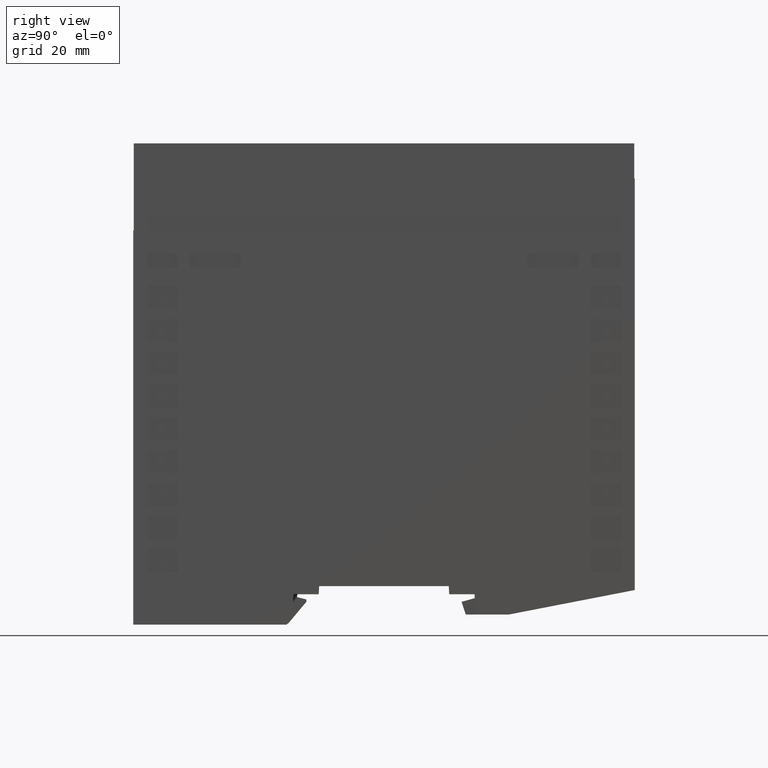
[diagram: clean part render]
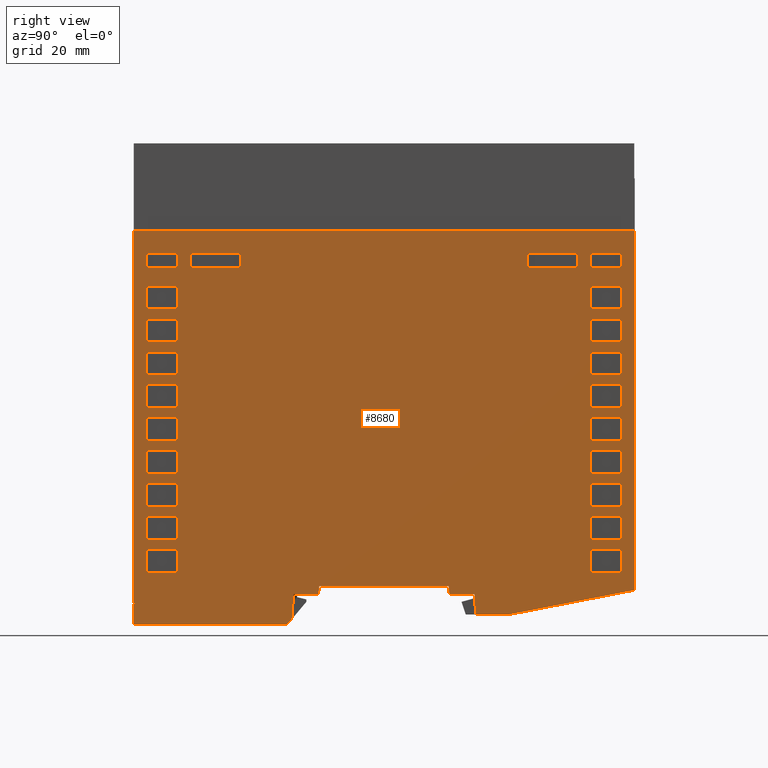
[diagram: same view with one face highlighted and labeled with its STEP entity id]
A machine part, right view. The second image highlights one B-rep face of the part: STEP entity #8680.
In plain terms, the highlighted planar face has unit normal (1, 0, 0).
Its self-contained STEP definition (entity closure, byte-faithful):
#10=CARTESIAN_POINT('',(-16.,36.7,0.));
#20=DIRECTION('',(-1.,0.,0.));
#30=DIRECTION('',(0.,0.,1.));
#40=AXIS2_PLACEMENT_3D('',#10,#20,#30);
#50=PLANE('',#40);
#60=CARTESIAN_POINT('',(-16.,60.84057139224,0.));
#70=DIRECTION('',(0.,0.,-1.));
#80=VECTOR('',#70,1.);
#90=LINE('',#60,#80);
#100=CARTESIAN_POINT('',(-16.,60.84057139224,46.99057139224));
#110=VERTEX_POINT('',#100);
#120=CARTESIAN_POINT('',(-16.,60.84057139224,40.80942860776));
#130=VERTEX_POINT('',#120);
#140=EDGE_CURVE('',#110,#130,#90,.T.);
#150=ORIENTED_EDGE('',*,*,#140,.F.);
#160=CARTESIAN_POINT('',(-16.,71.8,40.80942860776));
#170=DIRECTION('',(0.,-1.,0.));
#180=VECTOR('',#170,1.);
#190=LINE('',#160,#180);
#200=CARTESIAN_POINT('',(-16.,56.35942860776,40.80942860776));
#210=VERTEX_POINT('',#200);
#220=EDGE_CURVE('',#130,#210,#190,.T.);
#230=ORIENTED_EDGE('',*,*,#220,.F.);
#240=CARTESIAN_POINT('',(-16.,56.35942860776,0.));
#250=DIRECTION('',(0.,0.,1.));
#260=VECTOR('',#250,1.);
#270=LINE('',#240,#260);
#280=CARTESIAN_POINT('',(-16.,56.35942860776,46.99057139224));
#290=VERTEX_POINT('',#280);
#300=EDGE_CURVE('',#210,#290,#270,.T.);
#310=ORIENTED_EDGE('',*,*,#300,.F.);
#320=CARTESIAN_POINT('',(-16.,71.8,46.99057139224));
#330=DIRECTION('',(0.,1.,0.));
#340=VECTOR('',#330,1.);
#350=LINE('',#320,#340);
#360=EDGE_CURVE('',#290,#110,#350,.T.);
#370=ORIENTED_EDGE('',*,*,#360,.F.);
#380=EDGE_LOOP('',(#370,#310,#230,#150));
#390=FACE_BOUND('',#380,.T.);
#400=CARTESIAN_POINT('',(-16.,8.84057139223999,0.));
#410=DIRECTION('',(0.,0.,-1.));
#420=VECTOR('',#410,1.);
#430=LINE('',#400,#420);
#440=CARTESIAN_POINT('',(-16.,8.84057139223999,46.99057139224));
#450=VERTEX_POINT('',#440);
#460=CARTESIAN_POINT('',(-16.,8.84057139223999,40.80942860776));
#470=VERTEX_POINT('',#460);
#480=EDGE_CURVE('',#450,#470,#430,.T.);
#490=ORIENTED_EDGE('',*,*,#480,.F.);
#500=CARTESIAN_POINT('',(-16.,71.8,40.80942860776));
#510=DIRECTION('',(0.,-1.,0.));
#520=VECTOR('',#510,1.);
#530=LINE('',#500,#520);
#540=CARTESIAN_POINT('',(-16.,4.35942860775999,40.80942860776));
#550=VERTEX_POINT('',#540);
#560=EDGE_CURVE('',#470,#550,#530,.T.);
#570=ORIENTED_EDGE('',*,*,#560,.F.);
#580=CARTESIAN_POINT('',(-16.,4.35942860775999,0.));
#590=DIRECTION('',(0.,0.,1.));
#600=VECTOR('',#590,1.);
#610=LINE('',#580,#600);
#620=CARTESIAN_POINT('',(-16.,4.35942860775999,46.99057139224));
#630=VERTEX_POINT('',#620);
#640=EDGE_CURVE('',#550,#630,#610,.T.);
#650=ORIENTED_EDGE('',*,*,#640,.F.);
#660=CARTESIAN_POINT('',(-16.,71.8,46.99057139224));
#670=DIRECTION('',(0.,1.,0.));
#680=VECTOR('',#670,1.);
#690=LINE('',#660,#680);
#700=EDGE_CURVE('',#630,#450,#690,.T.);
#710=ORIENTED_EDGE('',*,*,#700,.F.);
#720=EDGE_LOOP('',(#710,#650,#570,#490));
#730=FACE_BOUND('',#720,.T.);
#740=CARTESIAN_POINT('',(-16.,23.85942860776,0.));
#750=DIRECTION('',(0.,0.,1.));
#760=VECTOR('',#750,1.);
#770=LINE('',#740,#760);
#780=CARTESIAN_POINT('',(-16.,23.85942860776,40.80942860776));
#790=VERTEX_POINT('',#780);
#800=CARTESIAN_POINT('',(-16.,23.85942860776,46.99057139224));
#810=VERTEX_POINT('',#800);
#820=EDGE_CURVE('',#790,#810,#770,.T.);
#830=ORIENTED_EDGE('',*,*,#820,.F.);
#840=CARTESIAN_POINT('',(-16.,71.8,46.99057139224));
#850=DIRECTION('',(0.,1.,0.));
#860=VECTOR('',#850,1.);
#870=LINE('',#840,#860);
#880=CARTESIAN_POINT('',(-16.,28.34057139224,46.99057139224));
#890=VERTEX_POINT('',#880);
#900=EDGE_CURVE('',#810,#890,#870,.T.);
#910=ORIENTED_EDGE('',*,*,#900,.F.);
#920=CARTESIAN_POINT('',(-16.,28.34057139224,0.));
#930=DIRECTION('',(0.,0.,-1.));
#940=VECTOR('',#930,1.);
#950=LINE('',#920,#940);
#960=CARTESIAN_POINT('',(-16.,28.34057139224,40.80942860776));
#970=VERTEX_POINT('',#960);
#980=EDGE_CURVE('',#890,#970,#950,.T.);
#990=ORIENTED_EDGE('',*,*,#980,.F.);
#1000=CARTESIAN_POINT('',(-16.,71.8,40.80942860776));
#1010=DIRECTION('',(0.,-1.,0.));
#1020=VECTOR('',#1010,1.);
#1030=LINE('',#1000,#1020);
#1040=EDGE_CURVE('',#970,#790,#1030,.T.);
#1050=ORIENTED_EDGE('',*,*,#1040,.F.);
#1060=EDGE_LOOP('',(#1050,#990,#910,#830));
#1070=FACE_BOUND('',#1060,.T.);
#1080=CARTESIAN_POINT('',(-16.,47.84057139224,0.));
#1090=DIRECTION('',(0.,0.,-1.));
#1100=VECTOR('',#1090,1.);
#1110=LINE('',#1080,#1100);
#1120=CARTESIAN_POINT('',(-16.,47.84057139224,46.99057139224));
#1130=VERTEX_POINT('',#1120);
#1140=CARTESIAN_POINT('',(-16.,47.84057139224,40.80942860776));
#1150=VERTEX_POINT('',#1140);
#1160=EDGE_CURVE('',#1130,#1150,#1110,.T.);
#1170=ORIENTED_EDGE('',*,*,#1160,.F.);
#1180=CARTESIAN_POINT('',(-16.,71.8,40.80942860776));
#1190=DIRECTION('',(0.,-1.,0.));
#1200=VECTOR('',#1190,1.);
#1210=LINE('',#1180,#1200);
#1220=CARTESIAN_POINT('',(-16.,43.35942860776,40.80942860776));
#1230=VERTEX_POINT('',#1220);
#1240=EDGE_CURVE('',#1150,#1230,#1210,.T.);
#1250=ORIENTED_EDGE('',*,*,#1240,.F.);
#1260=CARTESIAN_POINT('',(-16.,43.35942860776,0.));
#1270=DIRECTION('',(0.,0.,1.));
#1280=VECTOR('',#1270,1.);
#1290=LINE('',#1260,#1280);
#1300=CARTESIAN_POINT('',(-16.,43.35942860776,46.99057139224));
#1310=VERTEX_POINT('',#1300);
#1320=EDGE_CURVE('',#1230,#1310,#1290,.T.);
#1330=ORIENTED_EDGE('',*,*,#1320,.F.);
#1340=CARTESIAN_POINT('',(-16.,71.8,46.99057139224));
#1350=DIRECTION('',(0.,1.,0.));
#1360=VECTOR('',#1350,1.);
#1370=LINE('',#1340,#1360);
#1380=EDGE_CURVE('',#1310,#1130,#1370,.T.);
#1390=ORIENTED_EDGE('',*,*,#1380,.F.);
#1400=EDGE_LOOP('',(#1390,#1330,#1250,#1170));
#1410=FACE_BOUND('',#1400,.T.);
#1420=CARTESIAN_POINT('',(-16.,64.409428607763,0.));
#1430=DIRECTION('',(0.,0.,1.));
#1440=VECTOR('',#1430,1.);
#1450=LINE('',#1420,#1440);
#1460=CARTESIAN_POINT('',(-16.,64.409428607763,40.80942860776));
#1470=VERTEX_POINT('',#1460);
#1480=CARTESIAN_POINT('',(-16.,64.409428607763,46.99057139224));
#1490=VERTEX_POINT('',#1480);
#1500=EDGE_CURVE('',#1470,#1490,#1450,.T.);
#1510=ORIENTED_EDGE('',*,*,#1500,.F.);
#1520=CARTESIAN_POINT('',(-16.,71.8,46.99057139224));
#1530=DIRECTION('',(0.,1.,0.));
#1540=VECTOR('',#1530,1.);
#1550=LINE('',#1520,#1540);
#1560=CARTESIAN_POINT('',(-16.,67.290571392237,46.99057139224));
#1570=VERTEX_POINT('',#1560);
#1580=EDGE_CURVE('',#1490,#1570,#1550,.T.);
#1590=ORIENTED_EDGE('',*,*,#1580,.F.);
#1600=CARTESIAN_POINT('',(-16.,67.290571392237,0.));
#1610=DIRECTION('',(0.,0.,-1.));
#1620=VECTOR('',#1610,1.);
#1630=LINE('',#1600,#1620);
#1640=CARTESIAN_POINT('',(-16.,67.290571392237,40.80942860776));
#1650=VERTEX_POINT('',#1640);
#1660=EDGE_CURVE('',#1570,#1650,#1630,.T.);
#1670=ORIENTED_EDGE('',*,*,#1660,.F.);
#1680=CARTESIAN_POINT('',(-16.,71.8,40.80942860776));
#1690=DIRECTION('',(0.,-1.,0.));
#1700=VECTOR('',#1690,1.);
#1710=LINE('',#1680,#1700);
#1720=EDGE_CURVE('',#1650,#1470,#1710,.T.);
#1730=ORIENTED_EDGE('',*,*,#1720,.F.);
#1740=EDGE_LOOP('',(#1730,#1670,#1590,#1510));
#1750=FACE_BOUND('',#1740,.T.);
#1760=CARTESIAN_POINT('',(-16.,71.8,46.99057139224));
#1770=DIRECTION('',(0.,1.,0.));
#1780=VECTOR('',#1770,1.);
#1790=LINE('',#1760,#1780);
#1800=CARTESIAN_POINT('',(-16.,17.35942860776,46.99057139224));
#1810=VERTEX_POINT('',#1800);
#1820=CARTESIAN_POINT('',(-16.,21.84057139224,46.99057139224));
#1830=VERTEX_POINT('',#1820);
#1840=EDGE_CURVE('',#1810,#1830,#1790,.T.);
#1850=ORIENTED_EDGE('',*,*,#1840,.F.);
#1860=CARTESIAN_POINT('',(-16.,21.84057139224,0.));
#1870=DIRECTION('',(0.,0.,-1.));
#1880=VECTOR('',#1870,1.);
#1890=LINE('',#1860,#1880);
#1900=CARTESIAN_POINT('',(-16.,21.84057139224,40.80942860776));
#1910=VERTEX_POINT('',#1900);
#1920=EDGE_CURVE('',#1830,#1910,#1890,.T.);
#1930=ORIENTED_EDGE('',*,*,#1920,.F.);
#1940=CARTESIAN_POINT('',(-16.,71.8,40.80942860776));
#1950=DIRECTION('',(0.,-1.,0.));
#1960=VECTOR('',#1950,1.);
#1970=LINE('',#1940,#1960);
#1980=CARTESIAN_POINT('',(-16.,17.35942860776,40.80942860776));
#1990=VERTEX_POINT('',#1980);
#2000=EDGE_CURVE('',#1910,#1990,#1970,.T.);
#2010=ORIENTED_EDGE('',*,*,#2000,.F.);
#2020=CARTESIAN_POINT('',(-16.,17.35942860776,0.));
#2030=DIRECTION('',(0.,0.,1.));
#2040=VECTOR('',#2030,1.);
#2050=LINE('',#2020,#2040);
#2060=EDGE_CURVE('',#1990,#1810,#2050,.T.);
#2070=ORIENTED_EDGE('',*,*,#2060,.F.);
#2080=EDGE_LOOP('',(#2070,#2010,#1930,#1850));
#2090=FACE_BOUND('',#2080,.T.);
#2100=CARTESIAN_POINT('',(-16.,36.85942860776,0.));
#2110=DIRECTION('',(0.,0.,1.));
#2120=VECTOR('',#2110,1.);
#2130=LINE('',#2100,#2120);
#2140=CARTESIAN_POINT('',(-16.,36.85942860776,40.80942860776));
#2150=VERTEX_POINT('',#2140);
#2160=CARTESIAN_POINT('',(-16.,36.85942860776,46.99057139224));
#2170=VERTEX_POINT('',#2160);
#2180=EDGE_CURVE('',#2150,#2170,#2130,.T.);
#2190=ORIENTED_EDGE('',*,*,#2180,.F.);
#2200=CARTESIAN_POINT('',(-16.,71.8,46.99057139224));
#2210=DIRECTION('',(0.,1.,0.));
#2220=VECTOR('',#2210,1.);
#2230=LINE('',#2200,#2220);
#2240=CARTESIAN_POINT('',(-16.,41.34057139224,46.99057139224));
#2250=VERTEX_POINT('',#2240);
#2260=EDGE_CURVE('',#2170,#2250,#2230,.T.);
#2270=ORIENTED_EDGE('',*,*,#2260,.F.);
#2280=CARTESIAN_POINT('',(-16.,41.34057139224,0.));
#2290=DIRECTION('',(0.,0.,-1.));
#2300=VECTOR('',#2290,1.);
#2310=LINE('',#2280,#2300);
#2320=CARTESIAN_POINT('',(-16.,41.34057139224,40.80942860776));
#2330=VERTEX_POINT('',#2320);
#2340=EDGE_CURVE('',#2250,#2330,#2310,.T.);
#2350=ORIENTED_EDGE('',*,*,#2340,.F.);
#2360=CARTESIAN_POINT('',(-16.,71.8,40.80942860776));
#2370=DIRECTION('',(0.,-1.,0.));
#2380=VECTOR('',#2370,1.);
#2390=LINE('',#2360,#2380);
#2400=EDGE_CURVE('',#2330,#2150,#2390,.T.);
#2410=ORIENTED_EDGE('',*,*,#2400,.F.);
#2420=EDGE_LOOP('',(#2410,#2350,#2270,#2190));
#2430=FACE_BOUND('',#2420,.T.);
#2440=CARTESIAN_POINT('',(-16.,30.35942860776,0.));
#2450=DIRECTION('',(0.,0.,1.));
#2460=VECTOR('',#2450,1.);
#2470=LINE('',#2440,#2460);
#2480=CARTESIAN_POINT('',(-16.,30.35942860776,40.80942860776));
#2490=VERTEX_POINT('',#2480);
#2500=CARTESIAN_POINT('',(-16.,30.35942860776,46.99057139224));
#2510=VERTEX_POINT('',#2500);
#2520=EDGE_CURVE('',#2490,#2510,#2470,.T.);
#2530=ORIENTED_EDGE('',*,*,#2520,.F.);
#2540=CARTESIAN_POINT('',(-16.,71.8,46.99057139224));
#2550=DIRECTION('',(0.,1.,0.));
#2560=VECTOR('',#2550,1.);
#2570=LINE('',#2540,#2560);
#2580=CARTESIAN_POINT('',(-16.,34.84057139224,46.99057139224));
#2590=VERTEX_POINT('',#2580);
#2600=EDGE_CURVE('',#2510,#2590,#2570,.T.);
#2610=ORIENTED_EDGE('',*,*,#2600,.F.);
#2620=CARTESIAN_POINT('',(-16.,34.84057139224,0.));
#2630=DIRECTION('',(0.,0.,-1.));
#2640=VECTOR('',#2630,1.);
#2650=LINE('',#2620,#2640);
#2660=CARTESIAN_POINT('',(-16.,34.84057139224,40.80942860776));
#2670=VERTEX_POINT('',#2660);
#2680=EDGE_CURVE('',#2590,#2670,#2650,.T.);
#2690=ORIENTED_EDGE('',*,*,#2680,.F.);
#2700=CARTESIAN_POINT('',(-16.,71.8,40.80942860776));
#2710=DIRECTION('',(0.,-1.,0.));
#2720=VECTOR('',#2710,1.);
#2730=LINE('',#2700,#2720);
#2740=EDGE_CURVE('',#2670,#2490,#2730,.T.);
#2750=ORIENTED_EDGE('',*,*,#2740,.F.);
#2760=EDGE_LOOP('',(#2750,#2690,#2610,#2530));
#2770=FACE_BOUND('',#2760,.T.);
#2780=CARTESIAN_POINT('',(-16.,71.8,38.31221761491));
#2790=DIRECTION('',(0.,-1.,0.));
#2800=VECTOR('',#2790,1.);
#2810=LINE('',#2780,#2800);
#2820=CARTESIAN_POINT('',(-16.,67.312217614907,38.31221761491));
#2830=VERTEX_POINT('',#2820);
#2840=CARTESIAN_POINT('',(-16.,64.387782385093,38.31221761491));
#2850=VERTEX_POINT('',#2840);
#2860=EDGE_CURVE('',#2830,#2850,#2810,.T.);
#2870=ORIENTED_EDGE('',*,*,#2860,.T.);
#2880=CARTESIAN_POINT('',(-16.,67.312217614907,0.));
#2890=DIRECTION('',(0.,0.,1.));
#2900=VECTOR('',#2890,1.);
#2910=LINE('',#2880,#2900);
#2920=CARTESIAN_POINT('',(-16.,67.312217614907,28.28778238509));
#2930=VERTEX_POINT('',#2920);
#2940=EDGE_CURVE('',#2930,#2830,#2910,.T.);
#2950=ORIENTED_EDGE('',*,*,#2940,.T.);
#2960=CARTESIAN_POINT('',(-16.,71.8,28.28778238509));
#2970=DIRECTION('',(0.,1.,0.));
#2980=VECTOR('',#2970,1.);
#2990=LINE('',#2960,#2980);
#3000=CARTESIAN_POINT('',(-16.,64.387782385093,28.28778238509));
#3010=VERTEX_POINT('',#3000);
#3020=EDGE_CURVE('',#3010,#2930,#2990,.T.);
#3030=ORIENTED_EDGE('',*,*,#3020,.T.);
#3040=CARTESIAN_POINT('',(-16.,64.387782385093,0.));
#3050=DIRECTION('',(0.,0.,-1.));
#3060=VECTOR('',#3050,1.);
#3070=LINE('',#3040,#3060);
#3080=EDGE_CURVE('',#2850,#3010,#3070,.T.);
#3090=ORIENTED_EDGE('',*,*,#3080,.T.);
#3100=EDGE_LOOP('',(#3090,#3030,#2950,#2870));
#3110=FACE_BOUND('',#3100,.T.);
#3120=CARTESIAN_POINT('',(-16.,49.85942860776,0.));
#3130=DIRECTION('',(0.,0.,1.));
#3140=VECTOR('',#3130,1.);
#3150=LINE('',#3120,#3140);
#3160=CARTESIAN_POINT('',(-16.,49.85942860776,40.80942860776));
#3170=VERTEX_POINT('',#3160);
#3180=CARTESIAN_POINT('',(-16.,49.85942860776,46.99057139224));
#3190=VERTEX_POINT('',#3180);
#3200=EDGE_CURVE('',#3170,#3190,#3150,.T.);
#3210=ORIENTED_EDGE('',*,*,#3200,.F.);
#3220=CARTESIAN_POINT('',(-16.,71.8,46.99057139224));
#3230=DIRECTION('',(0.,1.,0.));
#3240=VECTOR('',#3230,1.);
#3250=LINE('',#3220,#3240);
#3260=CARTESIAN_POINT('',(-16.,54.34057139224,46.99057139224));
#3270=VERTEX_POINT('',#3260);
#3280=EDGE_CURVE('',#3190,#3270,#3250,.T.);
#3290=ORIENTED_EDGE('',*,*,#3280,.F.);
#3300=CARTESIAN_POINT('',(-16.,54.34057139224,0.));
#3310=DIRECTION('',(0.,0.,-1.));
#3320=VECTOR('',#3310,1.);
#3330=LINE('',#3300,#3320);
#3340=CARTESIAN_POINT('',(-16.,54.34057139224,40.80942860776));
#3350=VERTEX_POINT('',#3340);
#3360=EDGE_CURVE('',#3270,#3350,#3330,.T.);
#3370=ORIENTED_EDGE('',*,*,#3360,.F.);
#3380=CARTESIAN_POINT('',(-16.,71.8,40.80942860776));
#3390=DIRECTION('',(0.,-1.,0.));
#3400=VECTOR('',#3390,1.);
#3410=LINE('',#3380,#3400);
#3420=EDGE_CURVE('',#3350,#3170,#3410,.T.);
#3430=ORIENTED_EDGE('',*,*,#3420,.F.);
#3440=EDGE_LOOP('',(#3430,#3370,#3290,#3210));
#3450=FACE_BOUND('',#3440,.T.);
#3460=CARTESIAN_POINT('',(-16.,71.8,40.80942860776));
#3470=DIRECTION('',(0.,-1.,0.));
#3480=VECTOR('',#3470,1.);
#3490=LINE('',#3460,#3480);
#3500=CARTESIAN_POINT('',(-16.,15.35,40.80942860776));
#3510=VERTEX_POINT('',#3500);
#3520=CARTESIAN_POINT('',(-16.,10.85,40.80942860776));
#3530=VERTEX_POINT('',#3520);
#3540=EDGE_CURVE('',#3510,#3530,#3490,.T.);
#3550=ORIENTED_EDGE('',*,*,#3540,.F.);
#3560=CARTESIAN_POINT('',(-16.,10.85,0.));
#3570=DIRECTION('',(0.,0.,-1.));
#3580=VECTOR('',#3570,1.);
#3590=LINE('',#3560,#3580);
#3600=CARTESIAN_POINT('',(-16.,10.85,46.99057139224));
#3610=VERTEX_POINT('',#3600);
#3620=EDGE_CURVE('',#3610,#3530,#3590,.T.);
#3630=ORIENTED_EDGE('',*,*,#3620,.T.);
#3640=CARTESIAN_POINT('',(-16.,71.8,46.99057139224));
#3650=DIRECTION('',(0.,1.,0.));
#3660=VECTOR('',#3650,1.);
#3670=LINE('',#3640,#3660);
#3680=CARTESIAN_POINT('',(-16.,15.35,46.99057139224));
#3690=VERTEX_POINT('',#3680);
#3700=EDGE_CURVE('',#3610,#3690,#3670,.T.);
#3710=ORIENTED_EDGE('',*,*,#3700,.F.);
#3720=CARTESIAN_POINT('',(-16.,15.35,0.));
#3730=DIRECTION('',(0.,0.,1.));
#3740=VECTOR('',#3730,1.);
#3750=LINE('',#3720,#3740);
#3760=EDGE_CURVE('',#3510,#3690,#3750,.T.);
#3770=ORIENTED_EDGE('',*,*,#3760,.T.);
#3780=EDGE_LOOP('',(#3770,#3710,#3630,#3550));
#3790=FACE_BOUND('',#3780,.T.);
#3800=CARTESIAN_POINT('',(-16.,64.387782385093,0.));
#3810=DIRECTION('',(0.,0.,-1.));
#3820=VECTOR('',#3810,1.);
#3830=LINE('',#3800,#3820);
#3840=CARTESIAN_POINT('',(-16.,64.387782385093,-28.28778238509));
#3850=VERTEX_POINT('',#3840);
#3860=CARTESIAN_POINT('',(-16.,64.387782385093,-38.31221761491));
#3870=VERTEX_POINT('',#3860);
#3880=EDGE_CURVE('',#3850,#3870,#3830,.T.);
#3890=ORIENTED_EDGE('',*,*,#3880,.T.);
#3900=CARTESIAN_POINT('',(-16.,71.8,-28.28778238509));
#3910=DIRECTION('',(0.,-1.,0.));
#3920=VECTOR('',#3910,1.);
#3930=LINE('',#3900,#3920);
#3940=CARTESIAN_POINT('',(-16.,67.312217614907,-28.28778238509));
#3950=VERTEX_POINT('',#3940);
#3960=EDGE_CURVE('',#3950,#3850,#3930,.T.);
#3970=ORIENTED_EDGE('',*,*,#3960,.T.);
#3980=CARTESIAN_POINT('',(-16.,67.312217614907,0.));
#3990=DIRECTION('',(0.,0.,1.));
#4000=VECTOR('',#3990,1.);
#4010=LINE('',#3980,#4000);
#4020=CARTESIAN_POINT('',(-16.,67.312217614907,-38.31221761491));
#4030=VERTEX_POINT('',#4020);
#4040=EDGE_CURVE('',#4030,#3950,#4010,.T.);
#4050=ORIENTED_EDGE('',*,*,#4040,.T.);
#4060=CARTESIAN_POINT('',(-16.,71.8,-38.31221761491));
#4070=DIRECTION('',(0.,1.,0.));
#4080=VECTOR('',#4070,1.);
#4090=LINE('',#4060,#4080);
#4100=EDGE_CURVE('',#3870,#4030,#4090,.T.);
#4110=ORIENTED_EDGE('',*,*,#4100,.T.);
#4120=EDGE_LOOP('',(#4110,#4050,#3970,#3890));
#4130=FACE_BOUND('',#4120,.T.);
#4140=CARTESIAN_POINT('',(-16.,30.35942860776,0.));
#4150=DIRECTION('',(0.,0.,1.));
#4160=VECTOR('',#4150,1.);
#4170=LINE('',#4140,#4160);
#4180=CARTESIAN_POINT('',(-16.,30.35942860776,-46.99057139224));
#4190=VERTEX_POINT('',#4180);
#4200=CARTESIAN_POINT('',(-16.,30.35942860776,-40.80942860776));
#4210=VERTEX_POINT('',#4200);
#4220=EDGE_CURVE('',#4190,#4210,#4170,.T.);
#4230=ORIENTED_EDGE('',*,*,#4220,.F.);
#4240=CARTESIAN_POINT('',(-16.,71.8,-40.80942860776));
#4250=DIRECTION('',(0.,1.,0.));
#4260=VECTOR('',#4250,1.);
#4270=LINE('',#4240,#4260);
#4280=CARTESIAN_POINT('',(-16.,34.84057139224,-40.80942860776));
#4290=VERTEX_POINT('',#4280);
#4300=EDGE_CURVE('',#4210,#4290,#4270,.T.);
#4310=ORIENTED_EDGE('',*,*,#4300,.F.);
#4320=CARTESIAN_POINT('',(-16.,34.84057139224,0.));
#4330=DIRECTION('',(0.,0.,-1.));
#4340=VECTOR('',#4330,1.);
#4350=LINE('',#4320,#4340);
#4360=CARTESIAN_POINT('',(-16.,34.84057139224,-46.99057139224));
#4370=VERTEX_POINT('',#4360);
#4380=EDGE_CURVE('',#4290,#4370,#4350,.T.);
#4390=ORIENTED_EDGE('',*,*,#4380,.F.);
#4400=CARTESIAN_POINT('',(-16.,71.8,-46.99057139224));
#4410=DIRECTION('',(0.,-1.,0.));
#4420=VECTOR('',#4410,1.);
#4430=LINE('',#4400,#4420);
#4440=EDGE_CURVE('',#4370,#4190,#4430,.T.);
#4450=ORIENTED_EDGE('',*,*,#4440,.F.);
#4460=EDGE_LOOP('',(#4450,#4390,#4310,#4230));
#4470=FACE_BOUND('',#4460,.T.);
#4480=CARTESIAN_POINT('',(-16.,60.84057139224,0.));
#4490=DIRECTION('',(0.,0.,-1.));
#4500=VECTOR('',#4490,1.);
#4510=LINE('',#4480,#4500);
#4520=CARTESIAN_POINT('',(-16.,60.84057139224,-40.80942860776));
#4530=VERTEX_POINT('',#4520);
#4540=CARTESIAN_POINT('',(-16.,60.84057139224,-46.99057139224));
#4550=VERTEX_POINT('',#4540);
#4560=EDGE_CURVE('',#4530,#4550,#4510,.T.);
#4570=ORIENTED_EDGE('',*,*,#4560,.F.);
#4580=CARTESIAN_POINT('',(-16.,71.8,-46.99057139224));
#4590=DIRECTION('',(0.,-1.,0.));
#4600=VECTOR('',#4590,1.);
#4610=LINE('',#4580,#4600);
#4620=CARTESIAN_POINT('',(-16.,56.35942860776,-46.99057139224));
#4630=VERTEX_POINT('',#4620);
#4640=EDGE_CURVE('',#4550,#4630,#4610,.T.);
#4650=ORIENTED_EDGE('',*,*,#4640,.F.);
#4660=CARTESIAN_POINT('',(-16.,56.35942860776,0.));
#4670=DIRECTION('',(0.,0.,1.));
#4680=VECTOR('',#4670,1.);
#4690=LINE('',#4660,#4680);
#4700=CARTESIAN_POINT('',(-16.,56.35942860776,-40.80942860776));
#4710=VERTEX_POINT('',#4700);
#4720=EDGE_CURVE('',#4630,#4710,#4690,.T.);
#4730=ORIENTED_EDGE('',*,*,#4720,.F.);
#4740=CARTESIAN_POINT('',(-16.,71.8,-40.80942860776));
#4750=DIRECTION('',(0.,1.,0.));
#4760=VECTOR('',#4750,1.);
#4770=LINE('',#4740,#4760);
#4780=EDGE_CURVE('',#4710,#4530,#4770,.T.);
#4790=ORIENTED_EDGE('',*,*,#4780,.F.);
#4800=EDGE_LOOP('',(#4790,#4730,#4650,#4570));
#4810=FACE_BOUND('',#4800,.T.);
#4820=CARTESIAN_POINT('',(-16.,10.85,0.));
#4830=DIRECTION('',(0.,0.,-1.));
#4840=VECTOR('',#4830,1.);
#4850=LINE('',#4820,#4840);
#4860=CARTESIAN_POINT('',(-16.,10.85,-40.80942860776));
#4870=VERTEX_POINT('',#4860);
#4880=CARTESIAN_POINT('',(-16.,10.85,-46.99057139224));
#4890=VERTEX_POINT('',#4880);
#4900=EDGE_CURVE('',#4870,#4890,#4850,.T.);
#4910=ORIENTED_EDGE('',*,*,#4900,.T.);
#4920=CARTESIAN_POINT('',(-16.,71.8,-40.80942860776));
#4930=DIRECTION('',(0.,1.,0.));
#4940=VECTOR('',#4930,1.);
#4950=LINE('',#4920,#4940);
#4960=CARTESIAN_POINT('',(-16.,15.35,-40.80942860776));
#4970=VERTEX_POINT('',#4960);
#4980=EDGE_CURVE('',#4870,#4970,#4950,.T.);
#4990=ORIENTED_EDGE('',*,*,#4980,.F.);
#5000=CARTESIAN_POINT('',(-16.,15.35,0.));
#5010=DIRECTION('',(0.,0.,1.));
#5020=VECTOR('',#5010,1.);
#5030=LINE('',#5000,#5020);
#5040=CARTESIAN_POINT('',(-16.,15.35,-46.99057139224));
#5050=VERTEX_POINT('',#5040);
#5060=EDGE_CURVE('',#5050,#4970,#5030,.T.);
#5070=ORIENTED_EDGE('',*,*,#5060,.T.);
#5080=CARTESIAN_POINT('',(-16.,71.8,-46.99057139224));
#5090=DIRECTION('',(0.,-1.,0.));
#5100=VECTOR('',#5090,1.);
#5110=LINE('',#5080,#5100);
#5120=EDGE_CURVE('',#5050,#4890,#5110,.T.);
#5130=ORIENTED_EDGE('',*,*,#5120,.F.);
#5140=EDGE_LOOP('',(#5130,#5070,#4990,#4910));
#5150=FACE_BOUND('',#5140,.T.);
#5160=CARTESIAN_POINT('',(-16.,71.8,-40.80942860776));
#5170=DIRECTION('',(0.,1.,0.));
#5180=VECTOR('',#5170,1.);
#5190=LINE('',#5160,#5180);
#5200=CARTESIAN_POINT('',(-16.,17.35942860776,-40.80942860776));
#5210=VERTEX_POINT('',#5200);
#5220=CARTESIAN_POINT('',(-16.,21.84057139224,-40.80942860776));
#5230=VERTEX_POINT('',#5220);
#5240=EDGE_CURVE('',#5210,#5230,#5190,.T.);
#5250=ORIENTED_EDGE('',*,*,#5240,.F.);
#5260=CARTESIAN_POINT('',(-16.,21.84057139224,0.));
#5270=DIRECTION('',(0.,0.,-1.));
#5280=VECTOR('',#5270,1.);
#5290=LINE('',#5260,#5280);
#5300=CARTESIAN_POINT('',(-16.,21.84057139224,-46.99057139224));
#5310=VERTEX_POINT('',#5300);
#5320=EDGE_CURVE('',#5230,#5310,#5290,.T.);
#5330=ORIENTED_EDGE('',*,*,#5320,.F.);
#5340=CARTESIAN_POINT('',(-16.,71.8,-46.99057139224));
#5350=DIRECTION('',(0.,-1.,0.));
#5360=VECTOR('',#5350,1.);
#5370=LINE('',#5340,#5360);
#5380=CARTESIAN_POINT('',(-16.,17.35942860776,-46.99057139224));
#5390=VERTEX_POINT('',#5380);
#5400=EDGE_CURVE('',#5310,#5390,#5370,.T.);
#5410=ORIENTED_EDGE('',*,*,#5400,.F.);
#5420=CARTESIAN_POINT('',(-16.,17.35942860776,0.));
#5430=DIRECTION('',(0.,0.,1.));
#5440=VECTOR('',#5430,1.);
#5450=LINE('',#5420,#5440);
#5460=EDGE_CURVE('',#5390,#5210,#5450,.T.);
#5470=ORIENTED_EDGE('',*,*,#5460,.F.);
#5480=EDGE_LOOP('',(#5470,#5410,#5330,#5250));
#5490=FACE_BOUND('',#5480,.T.);
#5500=CARTESIAN_POINT('',(-16.,49.85942860776,0.));
#5510=DIRECTION('',(0.,0.,1.));
#5520=VECTOR('',#5510,1.);
#5530=LINE('',#5500,#5520);
#5540=CARTESIAN_POINT('',(-16.,49.85942860776,-46.99057139224));
#5550=VERTEX_POINT('',#5540);
#5560=CARTESIAN_POINT('',(-16.,49.85942860776,-40.80942860776));
#5570=VERTEX_POINT('',#5560);
#5580=EDGE_CURVE('',#5550,#5570,#5530,.T.);
#5590=ORIENTED_EDGE('',*,*,#5580,.F.);
#5600=CARTESIAN_POINT('',(-16.,71.8,-40.80942860776));
#5610=DIRECTION('',(0.,1.,0.));
#5620=VECTOR('',#5610,1.);
#5630=LINE('',#5600,#5620);
#5640=CARTESIAN_POINT('',(-16.,54.34057139224,-40.80942860776));
#5650=VERTEX_POINT('',#5640);
#5660=EDGE_CURVE('',#5570,#5650,#5630,.T.);
#5670=ORIENTED_EDGE('',*,*,#5660,.F.);
#5680=CARTESIAN_POINT('',(-16.,54.34057139224,0.));
#5690=DIRECTION('',(0.,0.,-1.));
#5700=VECTOR('',#5690,1.);
#5710=LINE('',#5680,#5700);
#5720=CARTESIAN_POINT('',(-16.,54.34057139224,-46.99057139224));
#5730=VERTEX_POINT('',#5720);
#5740=EDGE_CURVE('',#5650,#5730,#5710,.T.);
#5750=ORIENTED_EDGE('',*,*,#5740,.F.);
#5760=CARTESIAN_POINT('',(-16.,71.8,-46.99057139224));
#5770=DIRECTION('',(0.,-1.,0.));
#5780=VECTOR('',#5770,1.);
#5790=LINE('',#5760,#5780);
#5800=EDGE_CURVE('',#5730,#5550,#5790,.T.);
#5810=ORIENTED_EDGE('',*,*,#5800,.F.);
#5820=EDGE_LOOP('',(#5810,#5750,#5670,#5590));
#5830=FACE_BOUND('',#5820,.T.);
#5840=CARTESIAN_POINT('',(-16.,4.35942860775999,0.));
#5850=DIRECTION('',(0.,0.,1.));
#5860=VECTOR('',#5850,1.);
#5870=LINE('',#5840,#5860);
#5880=CARTESIAN_POINT('',(-16.,4.35942860775999,-46.99057139224));
#5890=VERTEX_POINT('',#5880);
#5900=CARTESIAN_POINT('',(-16.,4.35942860775999,-40.80942860776));
#5910=VERTEX_POINT('',#5900);
#5920=EDGE_CURVE('',#5890,#5910,#5870,.T.);
#5930=ORIENTED_EDGE('',*,*,#5920,.F.);
#5940=CARTESIAN_POINT('',(-16.,71.8,-40.80942860776));
#5950=DIRECTION('',(0.,1.,0.));
#5960=VECTOR('',#5950,1.);
#5970=LINE('',#5940,#5960);
#5980=CARTESIAN_POINT('',(-16.,8.84057139223999,-40.80942860776));
#5990=VERTEX_POINT('',#5980);
#6000=EDGE_CURVE('',#5910,#5990,#5970,.T.);
#6010=ORIENTED_EDGE('',*,*,#6000,.F.);
#6020=CARTESIAN_POINT('',(-16.,8.84057139223999,0.));
#6030=DIRECTION('',(0.,0.,-1.));
#6040=VECTOR('',#6030,1.);
#6050=LINE('',#6020,#6040);
#6060=CARTESIAN_POINT('',(-16.,8.84057139223999,-46.99057139224));
#6070=VERTEX_POINT('',#6060);
#6080=EDGE_CURVE('',#5990,#6070,#6050,.T.);
#6090=ORIENTED_EDGE('',*,*,#6080,.F.);
#6100=CARTESIAN_POINT('',(-16.,71.8,-46.99057139224));
#6110=DIRECTION('',(0.,-1.,0.));
#6120=VECTOR('',#6110,1.);
#6130=LINE('',#6100,#6120);
#6140=EDGE_CURVE('',#6070,#5890,#6130,.T.);
#6150=ORIENTED_EDGE('',*,*,#6140,.F.);
#6160=EDGE_LOOP('',(#6150,#6090,#6010,#5930));
#6170=FACE_BOUND('',#6160,.T.);
#6180=CARTESIAN_POINT('',(-16.,71.8,-40.80942860776));
#6190=DIRECTION('',(0.,1.,0.));
#6200=VECTOR('',#6190,1.);
#6210=LINE('',#6180,#6200);
#6220=CARTESIAN_POINT('',(-16.,64.409428607763,-40.80942860776));
#6230=VERTEX_POINT('',#6220);
#6240=CARTESIAN_POINT('',(-16.,67.290571392237,-40.80942860776));
#6250=VERTEX_POINT('',#6240);
#6260=EDGE_CURVE('',#6230,#6250,#6210,.T.);
#6270=ORIENTED_EDGE('',*,*,#6260,.F.);
#6280=CARTESIAN_POINT('',(-16.,67.290571392237,0.));
#6290=DIRECTION('',(0.,0.,-1.));
#6300=VECTOR('',#6290,1.);
#6310=LINE('',#6280,#6300);
#6320=CARTESIAN_POINT('',(-16.,67.290571392237,-46.99057139224));
#6330=VERTEX_POINT('',#6320);
#6340=EDGE_CURVE('',#6250,#6330,#6310,.T.);
#6350=ORIENTED_EDGE('',*,*,#6340,.F.);
#6360=CARTESIAN_POINT('',(-16.,71.8,-46.99057139224));
#6370=DIRECTION('',(0.,-1.,0.));
#6380=VECTOR('',#6370,1.);
#6390=LINE('',#6360,#6380);
#6400=CARTESIAN_POINT('',(-16.,64.409428607763,-46.99057139224));
#6410=VERTEX_POINT('',#6400);
#6420=EDGE_CURVE('',#6330,#6410,#6390,.T.);
#6430=ORIENTED_EDGE('',*,*,#6420,.F.);
#6440=CARTESIAN_POINT('',(-16.,64.409428607763,0.));
#6450=DIRECTION('',(0.,0.,1.));
#6460=VECTOR('',#6450,1.);
#6470=LINE('',#6440,#6460);
#6480=EDGE_CURVE('',#6410,#6230,#6470,.T.);
#6490=ORIENTED_EDGE('',*,*,#6480,.F.);
#6500=EDGE_LOOP('',(#6490,#6430,#6350,#6270));
#6510=FACE_BOUND('',#6500,.T.);
#6520=CARTESIAN_POINT('',(-16.,36.85942860776,0.));
#6530=DIRECTION('',(0.,0.,1.));
#6540=VECTOR('',#6530,1.);
#6550=LINE('',#6520,#6540);
#6560=CARTESIAN_POINT('',(-16.,36.85942860776,-46.99057139224));
#6570=VERTEX_POINT('',#6560);
#6580=CARTESIAN_POINT('',(-16.,36.85942860776,-40.80942860776));
#6590=VERTEX_POINT('',#6580);
#6600=EDGE_CURVE('',#6570,#6590,#6550,.T.);
#6610=ORIENTED_EDGE('',*,*,#6600,.F.);
#6620=CARTESIAN_POINT('',(-16.,71.8,-40.80942860776));
#6630=DIRECTION('',(0.,1.,0.));
#6640=VECTOR('',#6630,1.);
#6650=LINE('',#6620,#6640);
#6660=CARTESIAN_POINT('',(-16.,41.34057139224,-40.80942860776));
#6670=VERTEX_POINT('',#6660);
#6680=EDGE_CURVE('',#6590,#6670,#6650,.T.);
#6690=ORIENTED_EDGE('',*,*,#6680,.F.);
#6700=CARTESIAN_POINT('',(-16.,41.34057139224,0.));
#6710=DIRECTION('',(0.,0.,-1.));
#6720=VECTOR('',#6710,1.);
#6730=LINE('',#6700,#6720);
#6740=CARTESIAN_POINT('',(-16.,41.34057139224,-46.99057139224));
#6750=VERTEX_POINT('',#6740);
#6760=EDGE_CURVE('',#6670,#6750,#6730,.T.);
#6770=ORIENTED_EDGE('',*,*,#6760,.F.);
#6780=CARTESIAN_POINT('',(-16.,71.8,-46.99057139224));
#6790=DIRECTION('',(0.,-1.,0.));
#6800=VECTOR('',#6790,1.);
#6810=LINE('',#6780,#6800);
#6820=EDGE_CURVE('',#6750,#6570,#6810,.T.);
#6830=ORIENTED_EDGE('',*,*,#6820,.F.);
#6840=EDGE_LOOP('',(#6830,#6770,#6690,#6610));
#6850=FACE_BOUND('',#6840,.T.);
#6860=CARTESIAN_POINT('',(-16.,71.8,-40.80942860776));
#6870=DIRECTION('',(0.,1.,0.));
#6880=VECTOR('',#6870,1.);
#6890=LINE('',#6860,#6880);
#6900=CARTESIAN_POINT('',(-16.,23.85942860776,-40.80942860776));
#6910=VERTEX_POINT('',#6900);
#6920=CARTESIAN_POINT('',(-16.,28.34057139224,-40.80942860776));
#6930=VERTEX_POINT('',#6920);
#6940=EDGE_CURVE('',#6910,#6930,#6890,.T.);
#6950=ORIENTED_EDGE('',*,*,#6940,.F.);
#6960=CARTESIAN_POINT('',(-16.,28.34057139224,0.));
#6970=DIRECTION('',(0.,0.,-1.));
#6980=VECTOR('',#6970,1.);
#6990=LINE('',#6960,#6980);
#7000=CARTESIAN_POINT('',(-16.,28.34057139224,-46.99057139224));
#7010=VERTEX_POINT('',#7000);
#7020=EDGE_CURVE('',#6930,#7010,#6990,.T.);
#7030=ORIENTED_EDGE('',*,*,#7020,.F.);
#7040=CARTESIAN_POINT('',(-16.,71.8,-46.99057139224));
#7050=DIRECTION('',(0.,-1.,0.));
#7060=VECTOR('',#7050,1.);
#7070=LINE('',#7040,#7060);
#7080=CARTESIAN_POINT('',(-16.,23.85942860776,-46.99057139224));
#7090=VERTEX_POINT('',#7080);
#7100=EDGE_CURVE('',#7010,#7090,#7070,.T.);
#7110=ORIENTED_EDGE('',*,*,#7100,.F.);
#7120=CARTESIAN_POINT('',(-16.,23.85942860776,0.));
#7130=DIRECTION('',(0.,0.,1.));
#7140=VECTOR('',#7130,1.);
#7150=LINE('',#7120,#7140);
#7160=EDGE_CURVE('',#7090,#6910,#7150,.T.);
#7170=ORIENTED_EDGE('',*,*,#7160,.F.);
#7180=EDGE_LOOP('',(#7170,#7110,#7030,#6950));
#7190=FACE_BOUND('',#7180,.T.);
#7200=CARTESIAN_POINT('',(-16.,47.84057139224,0.));
#7210=DIRECTION('',(0.,0.,-1.));
#7220=VECTOR('',#7210,1.);
#7230=LINE('',#7200,#7220);
#7240=CARTESIAN_POINT('',(-16.,47.84057139224,-40.80942860776));
#7250=VERTEX_POINT('',#7240);
#7260=CARTESIAN_POINT('',(-16.,47.84057139224,-46.99057139224));
#7270=VERTEX_POINT('',#7260);
#7280=EDGE_CURVE('',#7250,#7270,#7230,.T.);
#7290=ORIENTED_EDGE('',*,*,#7280,.F.);
#7300=CARTESIAN_POINT('',(-16.,71.8,-46.99057139224));
#7310=DIRECTION('',(0.,-1.,0.));
#7320=VECTOR('',#7310,1.);
#7330=LINE('',#7300,#7320);
#7340=CARTESIAN_POINT('',(-16.,43.35942860776,-46.99057139224));
#7350=VERTEX_POINT('',#7340);
#7360=EDGE_CURVE('',#7270,#7350,#7330,.T.);
#7370=ORIENTED_EDGE('',*,*,#7360,.F.);
#7380=CARTESIAN_POINT('',(-16.,43.35942860776,0.));
#7390=DIRECTION('',(0.,0.,1.));
#7400=VECTOR('',#7390,1.);
#7410=LINE('',#7380,#7400);
#7420=CARTESIAN_POINT('',(-16.,43.35942860776,-40.80942860776));
#7430=VERTEX_POINT('',#7420);
#7440=EDGE_CURVE('',#7350,#7430,#7410,.T.);
#7450=ORIENTED_EDGE('',*,*,#7440,.F.);
#7460=CARTESIAN_POINT('',(-16.,71.8,-40.80942860776));
#7470=DIRECTION('',(0.,1.,0.));
#7480=VECTOR('',#7470,1.);
#7490=LINE('',#7460,#7480);
#7500=EDGE_CURVE('',#7430,#7250,#7490,.T.);
#7510=ORIENTED_EDGE('',*,*,#7500,.F.);
#7520=EDGE_LOOP('',(#7510,#7450,#7370,#7290));
#7530=FACE_BOUND('',#7520,.T.);
#7540=CARTESIAN_POINT('',(-16.,71.8,-0.00958668310546074));
#7550=DIRECTION('',(0.,1.66533453693773E-16,1.));
#7560=VECTOR('',#7550,1.);
#7570=LINE('',#7540,#7560);
#7580=CARTESIAN_POINT('',(-16.,71.8,-49.5));
#7590=VERTEX_POINT('',#7580);
#7600=CARTESIAN_POINT('',(-16.,71.8,49.5));
#7610=VERTEX_POINT('',#7600);
#7620=EDGE_CURVE('',#7590,#7610,#7570,.T.);
#7630=ORIENTED_EDGE('',*,*,#7620,.F.);
#7640=CARTESIAN_POINT('',(-16.,71.8,49.5));
#7650=DIRECTION('',(0.,-1.,0.));
#7660=VECTOR('',#7650,1.);
#7670=LINE('',#7640,#7660);
#7680=CARTESIAN_POINT('',(-16.,0.820631666614119,49.5));
#7690=VERTEX_POINT('',#7680);
#7700=EDGE_CURVE('',#7610,#7690,#7670,.T.);
#7710=ORIENTED_EDGE('',*,*,#7700,.F.);
#7720=CARTESIAN_POINT('',(-16.,-4.,24.7));
#7730=DIRECTION('',(0.,0.190808995376495,0.981627183447674));
#7740=VECTOR('',#7730,1.);
#7750=LINE('',#7720,#7740);
#7760=CARTESIAN_POINT('',(-16.,-3.99999999999999,24.7));
#7770=VERTEX_POINT('',#7760);
#7780=EDGE_CURVE('',#7770,#7690,#7750,.T.);
#7790=ORIENTED_EDGE('',*,*,#7780,.T.);
#7800=CARTESIAN_POINT('',(-16.,-4.,0.));
#7810=DIRECTION('',(0.,0.,1.));
#7820=VECTOR('',#7810,1.);
#7830=LINE('',#7800,#7820);
#7840=CARTESIAN_POINT('',(-16.,-3.99999999999999,18.0838968808824));
#7850=VERTEX_POINT('',#7840);
#7860=EDGE_CURVE('',#7850,#7770,#7830,.T.);
#7870=ORIENTED_EDGE('',*,*,#7860,.T.);
#7880=CARTESIAN_POINT('',(-16.,71.8,14.1113872112283));
#7890=DIRECTION('',(0.,0.998629534754574,-0.0523359562429386));
#7900=VECTOR('',#7890,1.);
#7910=LINE('',#7880,#7900);
#7920=CARTESIAN_POINT('',(-16.,1.4210854715202E-14,17.8742657637502));
#7930=VERTEX_POINT('',#7920);
#7940=EDGE_CURVE('',#7850,#7930,#7910,.T.);
#7950=ORIENTED_EDGE('',*,*,#7940,.F.);
#7960=CARTESIAN_POINT('',(-16.,1.4210854715202E-14,0.));
#7970=DIRECTION('',(0.,0.,-1.));
#7980=VECTOR('',#7970,1.);
#7990=LINE('',#7960,#7980);
#8000=CARTESIAN_POINT('',(-16.,-2.8421709430404E-14,12.8742657637438));
#8010=VERTEX_POINT('',#8000);
#8020=EDGE_CURVE('',#7930,#8010,#7990,.T.);
#8030=ORIENTED_EDGE('',*,*,#8020,.F.);
#8040=CARTESIAN_POINT('',(-16.,71.8,9.11138721122179));
#8050=DIRECTION('',(0.,0.998629534754574,-0.0523359562429387));
#8060=VECTOR('',#8050,1.);
#8070=LINE('',#8040,#8060);
#8080=CARTESIAN_POINT('',(-16.,1.60000000000001,12.7904133168909));
#8090=VERTEX_POINT('',#8080);
#8100=EDGE_CURVE('',#8010,#8090,#8070,.T.);
#8110=ORIENTED_EDGE('',*,*,#8100,.F.);
#8120=CARTESIAN_POINT('',(-16.,1.59999999999998,0.));
#8130=DIRECTION('',(0.,0.,1.));
#8140=VECTOR('',#8130,1.);
#8150=LINE('',#8120,#8140);
#8160=CARTESIAN_POINT('',(-16.,1.60000000000001,-12.805946912413));
#8170=VERTEX_POINT('',#8160);
#8180=EDGE_CURVE('',#8170,#8090,#8150,.T.);
#8190=ORIENTED_EDGE('',*,*,#8180,.T.);
#8200=CARTESIAN_POINT('',(-16.,71.8,-9.12692080674388));
#8210=DIRECTION('',(0.,0.998629534754574,0.0523359562429386));
#8220=VECTOR('',#8210,1.);
#8230=LINE('',#8200,#8220);
#8240=CARTESIAN_POINT('',(-16.,1.4210854715202E-14,-12.8897993592659));
#8250=VERTEX_POINT('',#8240);
#8260=EDGE_CURVE('',#8250,#8170,#8230,.T.);
#8270=ORIENTED_EDGE('',*,*,#8260,.T.);
#8280=CARTESIAN_POINT('',(-16.,1.4210854715202E-14,0.));
#8290=DIRECTION('',(0.,0.,-1.));
#8300=VECTOR('',#8290,1.);
#8310=LINE('',#8280,#8300);
#8320=CARTESIAN_POINT('',(-16.,1.4210854715202E-14,-17.8897993592679));
#8330=VERTEX_POINT('',#8320);
#8340=EDGE_CURVE('',#8250,#8330,#8310,.T.);
#8350=ORIENTED_EDGE('',*,*,#8340,.F.);
#8360=CARTESIAN_POINT('',(-16.,71.8,-14.1269208067459));
#8370=DIRECTION('',(0.,0.998629534754574,0.0523359562429386));
#8380=VECTOR('',#8370,1.);
#8390=LINE('',#8360,#8380);
#8400=CARTESIAN_POINT('',(-16.,-4.73641364760859,-18.1380242803049));
#8410=VERTEX_POINT('',#8400);
#8420=EDGE_CURVE('',#8410,#8330,#8390,.T.);
#8430=ORIENTED_EDGE('',*,*,#8420,.T.);
#8440=CARTESIAN_POINT('',(-16.,71.8,46.0836521830294));
#8450=DIRECTION('',(0.,0.766044443119007,0.642787609686505));
#8460=VECTOR('',#8450,1.);
#8470=LINE('',#8440,#8460);
#8480=CARTESIAN_POINT('',(-16.,-5.99999999999997,-19.1982991225571));
#8490=VERTEX_POINT('',#8480);
#8500=EDGE_CURVE('',#8490,#8410,#8470,.T.);
#8510=ORIENTED_EDGE('',*,*,#8500,.T.);
#8520=CARTESIAN_POINT('',(-16.,-5.99999999999999,0.));
#8530=DIRECTION('',(0.,0.,-1.));
#8540=VECTOR('',#8530,1.);
#8550=LINE('',#8520,#8540);
#8560=CARTESIAN_POINT('',(-16.,-5.99999999999999,-49.5));
#8570=VERTEX_POINT('',#8560);
#8580=EDGE_CURVE('',#8490,#8570,#8550,.T.);
#8590=ORIENTED_EDGE('',*,*,#8580,.F.);
#8600=CARTESIAN_POINT('',(-16.,71.8,-49.5));
#8610=DIRECTION('',(0.,1.,0.));
#8620=VECTOR('',#8610,1.);
#8630=LINE('',#8600,#8620);
#8640=EDGE_CURVE('',#8570,#7590,#8630,.T.);
#8650=ORIENTED_EDGE('',*,*,#8640,.F.);
#8660=EDGE_LOOP('',(#8650,#8590,#8510,#8430,#8350,#8270,#8190,#8110,
#8030,#7950,#7870,#7790,#7710,#7630));
#8670=FACE_OUTER_BOUND('',#8660,.T.);
#8680=ADVANCED_FACE('',(#390,#730,#1070,#1410,#1750,#2090,#2430,#2770,
#3110,#3450,#3790,#4130,#4470,#4810,#5150,#5490,#5830,#6170,#6510,#6850,
#7190,#7530,#8670),#50,.T.);